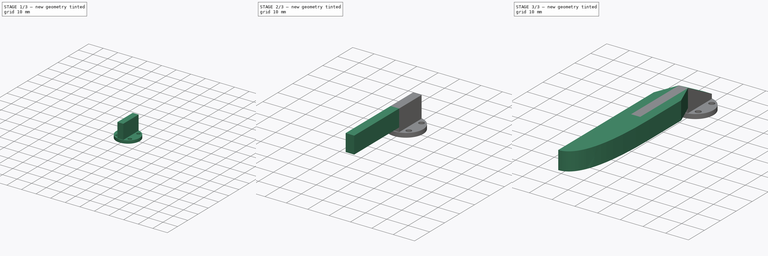
[diagram: build sequence overview — one tinted view per stage of 3, left to right]
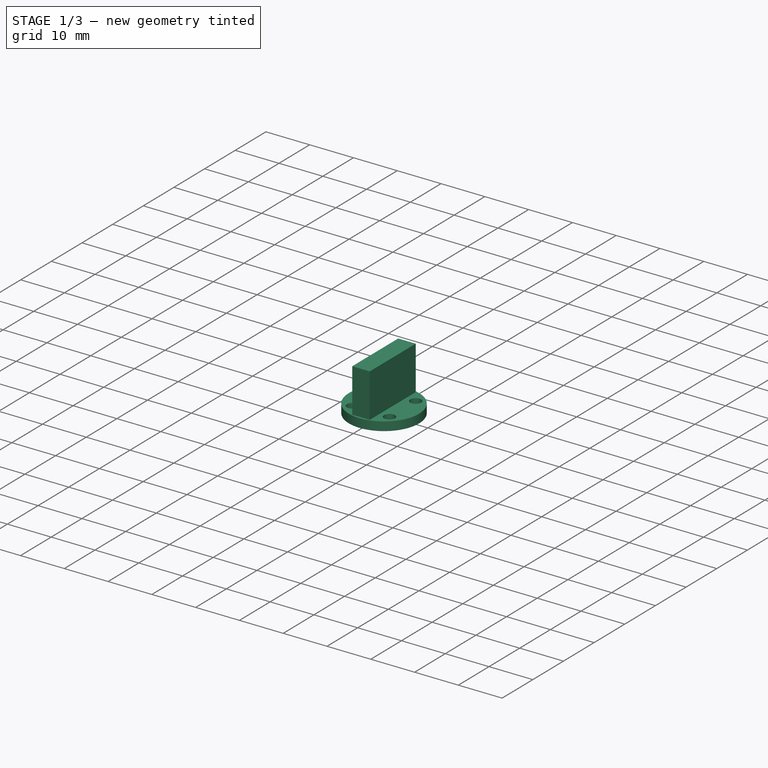
[diagram: stage 1 of 3 — iso view after this stage's code; geometry added in this stage tinted green]
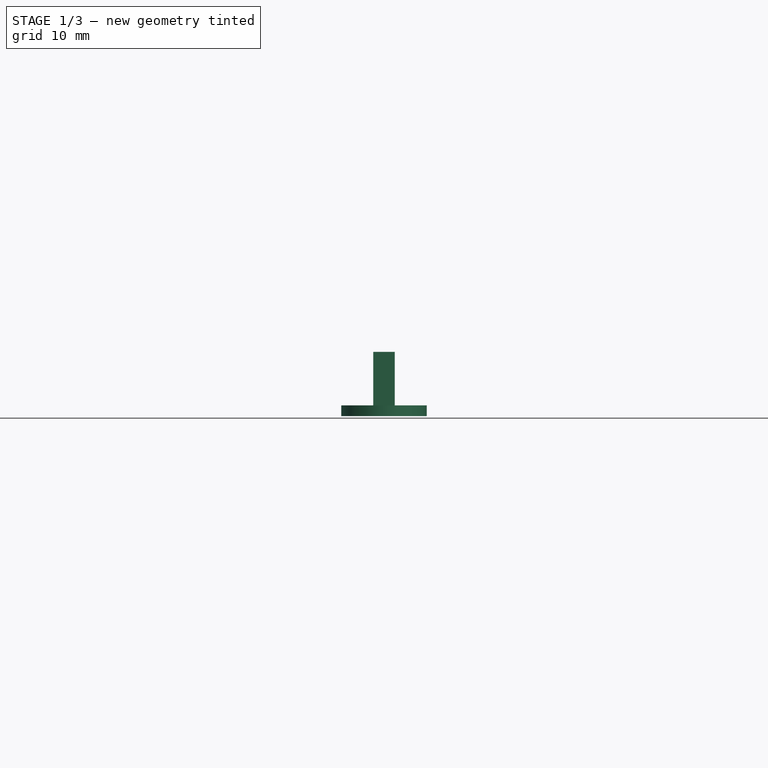
[diagram: stage 1 of 3 — front view after this stage's code; geometry added in this stage tinted green]
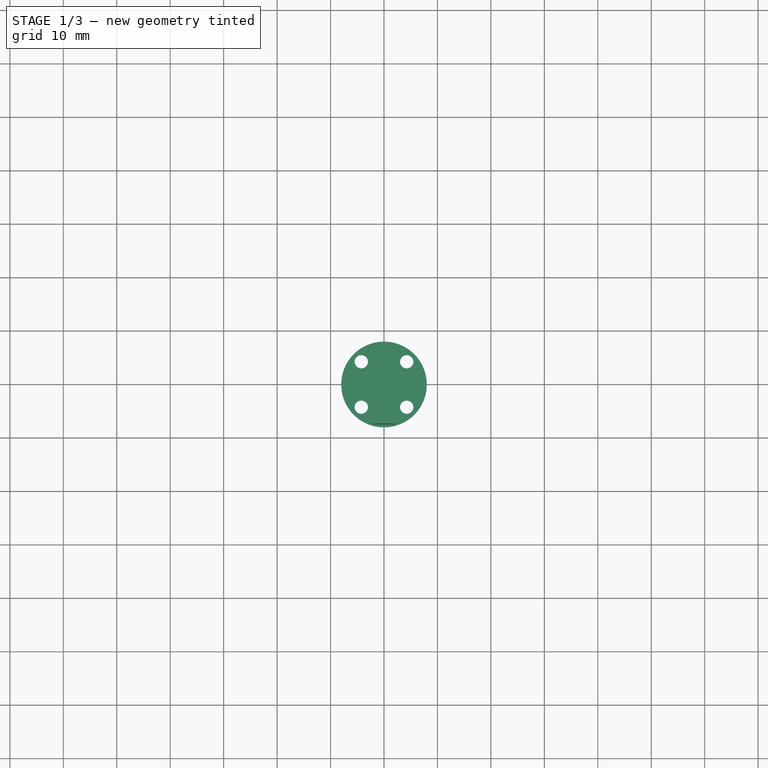
[diagram: stage 1 of 3 — top view after this stage's code; geometry added in this stage tinted green]
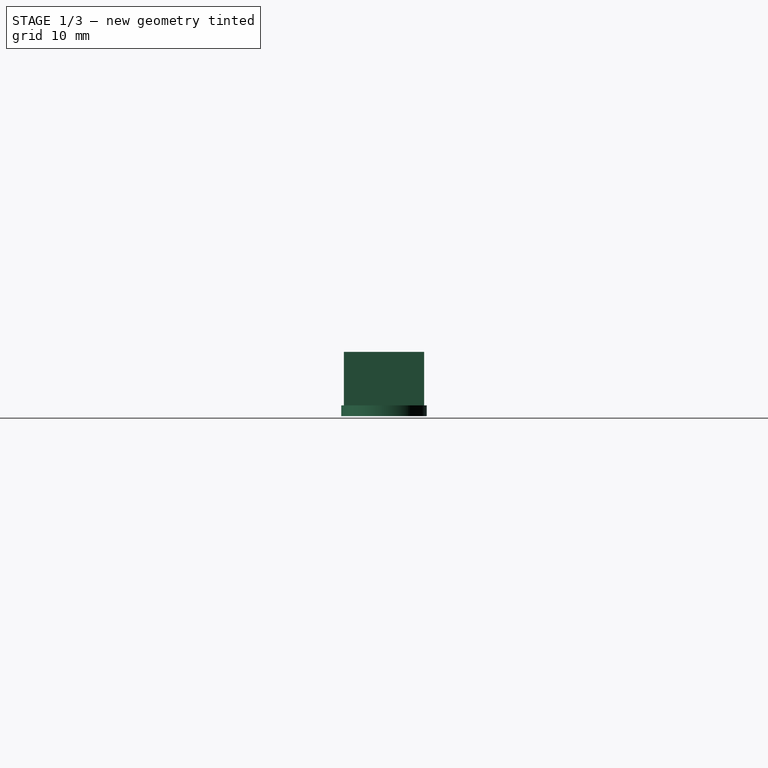
[diagram: stage 1 of 3 — right view after this stage's code; geometry added in this stage tinted green]
FCSTD DOCUMENT  (FreeCAD 0.20R29603 (Git))
Label: Finger
License: All rights reserved
LicenseURL: http://en.wikipedia.org/wiki/All_rights_reserved
objects: Sketcher::SketchObject×5, PartDesign::Pad×4, PartDesign::Pocket×1, PartDesign::Body×1
note: 16 computed .brp shape members not serialized (recipe doc carries the construction recipe); baked Part::Feature solids carry a one-line shape summary decoded from their .brp

FEATURE [Sketcher::SketchObject] Sketch
  FullyConstrained = true
  MapMode = 5
  Support = -> [XY_Plane]
  sketch-geometry (5):
    g0: Circle CenterX=0 CenterY=0 CenterZ=0 NormalX=0 NormalY=0 NormalZ=1 AngleXU=0 Radius=8
    g1: Circle CenterX=-4.25 CenterY=4.25 CenterZ=0 NormalX=0 NormalY=0 NormalZ=1 AngleXU=0 Radius=1.25
    g2: Circle CenterX=4.25 CenterY=4.25 CenterZ=0 NormalX=0 NormalY=0 NormalZ=1 AngleXU=0 Radius=1.25
    g3: Circle CenterX=4.25 CenterY=-4.25 CenterZ=0 NormalX=0 NormalY=0 NormalZ=1 AngleXU=0 Radius=1.25
    g4: Circle CenterX=-4.25 CenterY=-4.25 CenterZ=0 NormalX=0 NormalY=0 NormalZ=1 AngleXU=0 Radius=1.25
  constraints (14):
    c: Coincident(g0,g-1)
    c: Diameter(g0) = 16
    c: Diameter(g1) = 2.5
    c: Diameter(g2) = 2.5
    c: Diameter(g3) = 2.5
    c: Diameter(g4) = 2.5
    c: DistanceX(g1,g4) = 0
    c: DistanceX(g2,g3) = 0
    c: DistanceY(g1,g2) = 0
    c: DistanceY(g3,g4) = 0
    c: DistanceX(g1,g0) = 4.25
    c: DistanceX(g0,g2) = 4.25
    c: DistanceY(g0,g2) = 4.25
    c: DistanceY(g3,g0) = 4.25
FEATURE [PartDesign::Pad] Pad
  Direction = (0,0,1)
  Length = 2
  Length2 = 10
  Profile = -> Sketch
  ReferenceAxis = -> Sketch [N_Axis]
  Type = 0
FEATURE [Sketcher::SketchObject] Sketch001
  FullyConstrained = true
  MapMode = 5
  Placement = pos=(0,0,2) rot=(0,0,1;0rad)
  Support = -> [Pad]
  sketch-geometry (4):
    g0: LineSegment StartX=-2 StartY=7.5 StartZ=0 EndX=2 EndY=7.5 EndZ=0
    g1: LineSegment StartX=2 StartY=7.5 StartZ=0 EndX=2 EndY=-7.5 EndZ=0
    g2: LineSegment StartX=2 StartY=-7.5 StartZ=0 EndX=-2 EndY=-7.5 EndZ=0
    g3: LineSegment StartX=-2 StartY=-7.5 StartZ=0 EndX=-2 EndY=7.5 EndZ=0
  constraints (12):
    c: Coincident(g0,g1)
    c: Coincident(g1,g2)
    c: Coincident(g2,g3)
    c: Coincident(g3,g0)
    c: Horizontal(g0)
    c: Horizontal(g2)
    c: Vertical(g1)
    c: Vertical(g3)
    c: DistanceX(g0,g0) = 4
    c: DistanceX(g-1,g0) = 2
    c: DistanceY(g1,g1) = 15
    c: DistanceY(g-1,g0) = 7.5
FEATURE [PartDesign::Pad] Pad001
  BaseFeature = -> Pad
  Direction = (0,0,1)
  Length = 10
  Length2 = 10
  Profile = -> Sketch001
  ReferenceAxis = -> Sketch001 [N_Axis]
  Type = 0
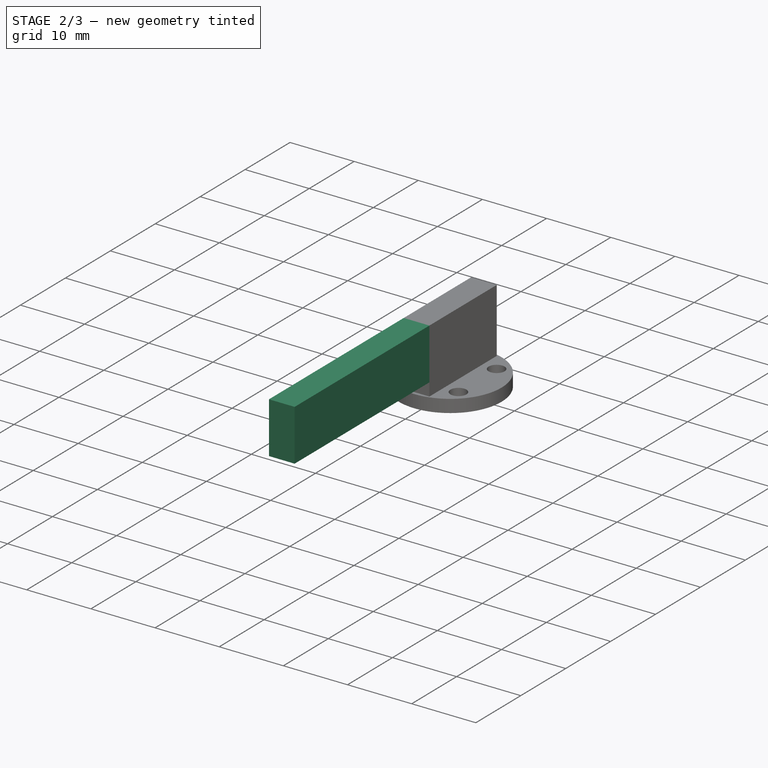
[diagram: stage 2 of 3 — iso view after this stage's code; geometry added in this stage tinted green]
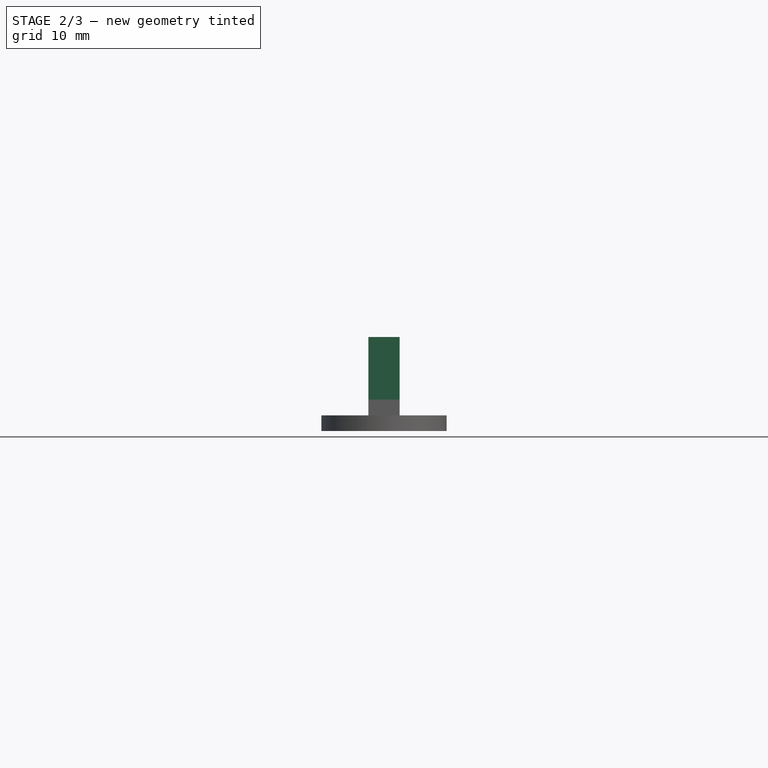
[diagram: stage 2 of 3 — front view after this stage's code; geometry added in this stage tinted green]
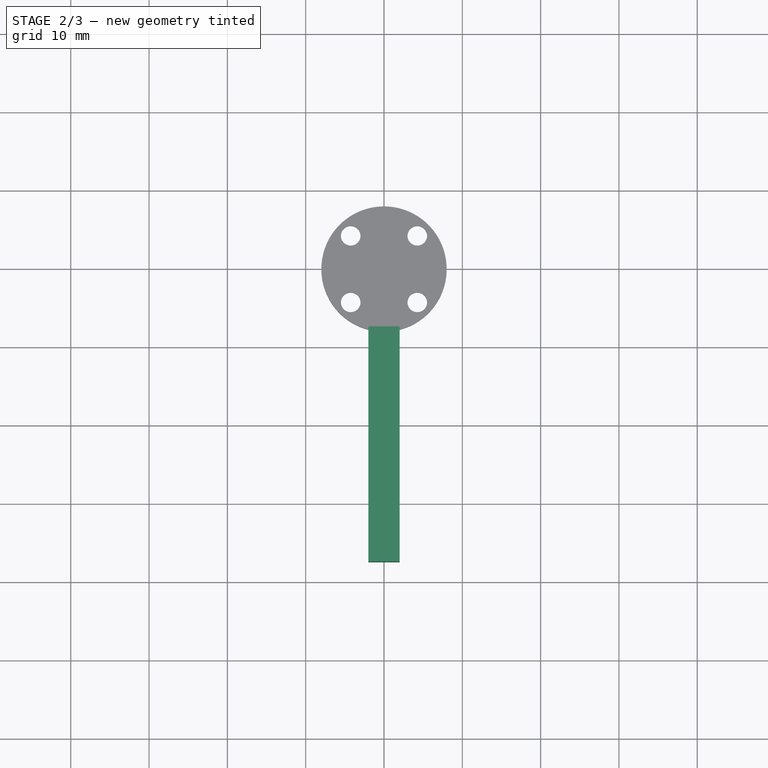
[diagram: stage 2 of 3 — top view after this stage's code; geometry added in this stage tinted green]
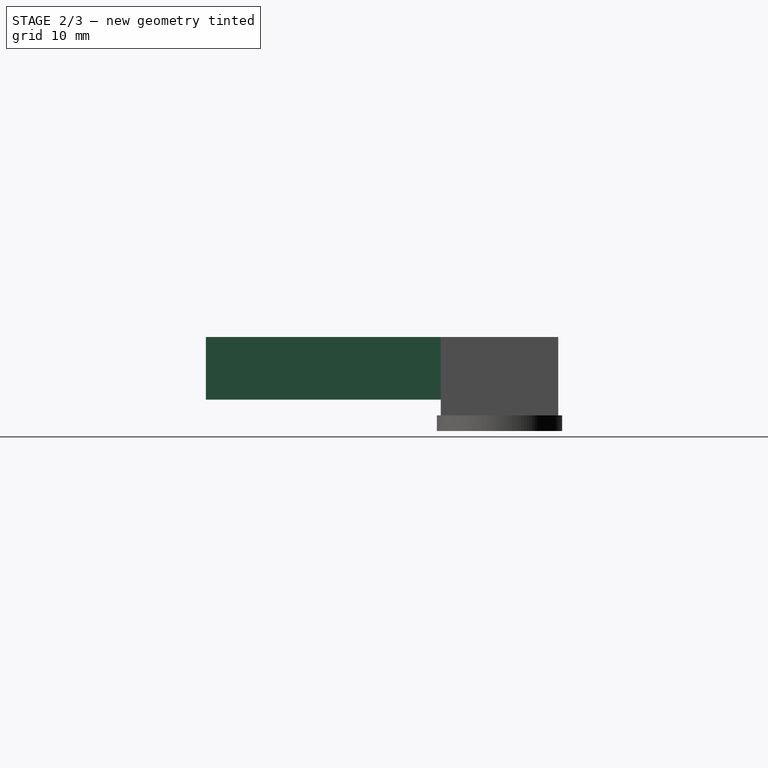
[diagram: stage 2 of 3 — right view after this stage's code; geometry added in this stage tinted green]
FEATURE [Sketcher::SketchObject] Sketch002
  ExternalGeometry = -> [Pad001]
  FullyConstrained = true
  MapMode = 5
  Placement = pos=(0,-7.5,0) rot=(1,0,0;1.5708rad)
  Support = -> [Pad001]
  sketch-geometry (4):
    g0: LineSegment StartX=-2 StartY=12 StartZ=0 EndX=2 EndY=12 EndZ=0
    g1: LineSegment StartX=2 StartY=12 StartZ=0 EndX=2 EndY=4 EndZ=0
    g2: LineSegment StartX=2 StartY=4 StartZ=0 EndX=-2 EndY=4 EndZ=0
    g3: LineSegment StartX=-2 StartY=4 StartZ=0 EndX=-2 EndY=12 EndZ=0
  constraints (12):
    c: Coincident(g0,g1)
    c: Coincident(g1,g2)
    c: Coincident(g2,g3)
    c: Coincident(g3,g0)
    c: Horizontal(g0)
    c: Horizontal(g2)
    c: Vertical(g1)
    c: Vertical(g3)
    c: DistanceX(g-3,g0) = 0
    c: DistanceX(g0,g-3) = 0
    c: DistanceY(g0,g-3) = 0
    c: DistanceY(g1,g1) = 8
FEATURE [PartDesign::Pad] Pad002
  BaseFeature = -> Pad001
  Direction = (0,-1,2e-16)
  Length = 30
  Length2 = 10
  Profile = -> Sketch002
  ReferenceAxis = -> Sketch002 [N_Axis]
  Type = 0
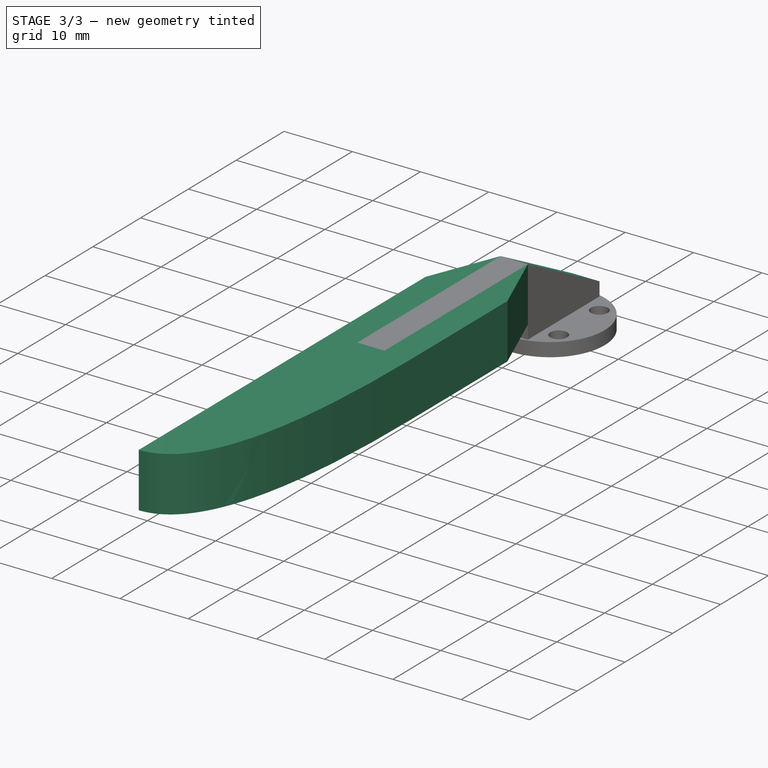
[diagram: stage 3 of 3 — iso view after this stage's code; geometry added in this stage tinted green]
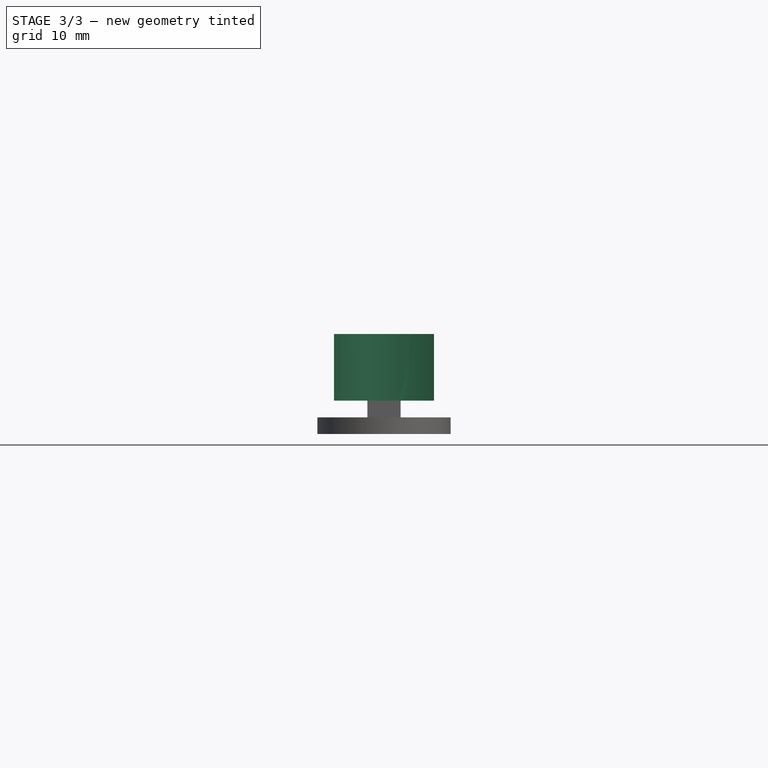
[diagram: stage 3 of 3 — front view after this stage's code; geometry added in this stage tinted green]
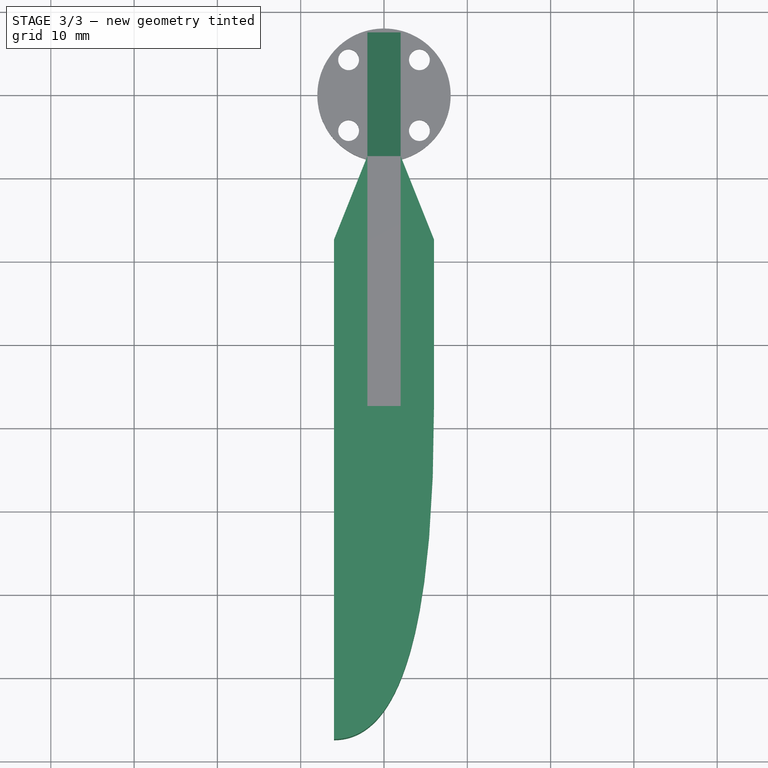
[diagram: stage 3 of 3 — top view after this stage's code; geometry added in this stage tinted green]
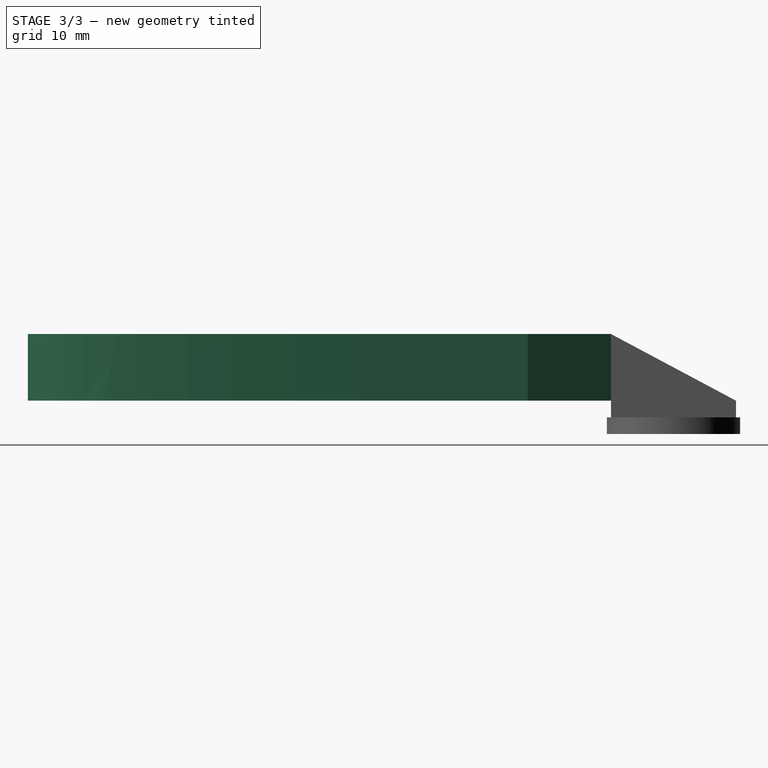
[diagram: stage 3 of 3 — right view after this stage's code; geometry added in this stage tinted green]
FEATURE [Sketcher::SketchObject] Sketch003
  ExternalGeometry = -> [Pad002]
  FullyConstrained = true
  MapMode = 5
  Placement = pos=(2,0,0) rot=(0.57735,0.57735,0.57735;2.0944rad)
  Support = -> [Pad002]
  sketch-geometry (5):
    g0: LineSegment StartX=-7.5 StartY=12 StartZ=0 EndX=7.5 EndY=4 EndZ=0
    g1: LineSegment StartX=7.5 StartY=4 StartZ=0 EndX=17.5 EndY=4 EndZ=0
    g2: LineSegment StartX=-7.5 StartY=12 StartZ=0 EndX=-7.5 EndY=22 EndZ=0
    g3: LineSegment StartX=-7.5 StartY=22 StartZ=0 EndX=17.5 EndY=22 EndZ=0
    g4: LineSegment StartX=17.5 StartY=22 StartZ=0 EndX=17.5 EndY=4 EndZ=0
  constraints (15):
    c: Coincident(g1,g0)
    c: Horizontal(g1)
    c: Coincident(g2,g0)
    c: Vertical(g2)
    c: Coincident(g3,g2)
    c: Horizontal(g3)
    c: Coincident(g4,g3)
    c: Coincident(g4,g1)
    c: Vertical(g4)
    c: DistanceY(g2,g2) = 10
    c: DistanceY(g0,g0) = 8
    c: DistanceY(g0,g-3) = 0
    c: DistanceX(g1,g1) = 10
    c: DistanceX(g0,g-3) = 0
    c: DistanceX(g-3,g0) = 0
FEATURE [PartDesign::Pocket] Pocket
  BaseFeature = -> Pad002
  Direction = (-1,0,0)
  Length = 5
  Length2 = 5
  Profile = -> Sketch003
  ReferenceAxis = -> Sketch003 [N_Axis]
  Type = 0
FEATURE [Sketcher::SketchObject] Sketch004
  ExternalGeometry = -> [Pocket]
  FullyConstrained = true
  MapMode = 5
  Placement = pos=(0,2.7e-15,12) rot=(0,0,1;0rad)
  Support = -> [Pocket]
  sketch-geometry (11):
    g0: LineSegment StartX=-2 StartY=-7.5 StartZ=0 EndX=2 EndY=-7.5 EndZ=0
    g1: LineSegment StartX=-2 StartY=-7.5 StartZ=0 EndX=-6 EndY=-17.5 EndZ=0
    g2: LineSegment StartX=2 StartY=-7.5 StartZ=0 EndX=6 EndY=-17.5 EndZ=0
    g3: LineSegment StartX=-6 StartY=-17.5 StartZ=0 EndX=-6 EndY=-77.5 EndZ=0
    g4: Circle CenterX=6 CenterY=-37.5 CenterZ=0 NormalX=0 NormalY=0 NormalZ=1 AngleXU=0 Radius=1
    g5: Circle CenterX=6 CenterY=-77.5 CenterZ=0 NormalX=0 NormalY=0 NormalZ=1 AngleXU=0 Radius=1
    g6: Circle CenterX=-6 CenterY=-77.5 CenterZ=0 NormalX=0 NormalY=0 NormalZ=1 AngleXU=0 Radius=1
    g7: BSplineCurve PolesCount=3 KnotsCount=2 Degree=2 IsPeriodic=0
    g8: GeomPoint X=6 Y=-37.5 Z=0
    g9: GeomPoint X=-6 Y=-77.5 Z=0
    g10: LineSegment StartX=6 StartY=-17.5 StartZ=0 EndX=6 EndY=-37.5 EndZ=0
  constraints (28):
    c: Horizontal(g0)
    c: Coincident(g1,g0)
    c: Coincident(g2,g0)
    c: Coincident(g3,g1)
    c: Vertical(g3)
    c: Weight(g4) = 1
    c: Equal(g4,g5)
    c: Equal(g4,g6)
    c: InternalAlignment(g4,g7)
    c: InternalAlignment(g5,g7)
    c: InternalAlignment(g6,g7)
    c: InternalAlignment(g8,g7)
    c: InternalAlignment(g9,g7)
    c: Coincident(g10,g2)
    c: Coincident(g10,g7)
    c: Vertical(g10)
    c: Coincident(g7,g3)
    c: Horizontal(g3,g5)
    c: Vertical(g7,g5)
    c: DistanceX(g1,g-3) = 4
    c: DistanceX(g-3,g2) = 4
    c: DistanceY(g3,g-3) = 70
    c: DistanceY(g1,g-3) = 10
    c: DistanceY(g2,g-3) = 10
    c: DistanceX(g0,g-3) = 0
    c: DistanceX(g-3,g0) = 0
    c: DistanceY(g0,g-3) = 0
    c: DistanceY(g7,g2) = 20
FEATURE [PartDesign::Pad] Pad003
  BaseFeature = -> Pocket
  Direction = (0,2e-16,1)
  Length = 8
  Length2 = 10
  Profile = -> Sketch004
  ReferenceAxis = -> Sketch004 [N_Axis]
  Reversed = true
  Type = 0
FEATURE [PartDesign::Body] Body
  Group = -> [Sketch,Pad,Sketch001,Pad001,Sketch002,Pad002,Sketch003,Pocket,Sketch004,Pad003]
  Origin = -> Origin
  Tip = -> Pad003
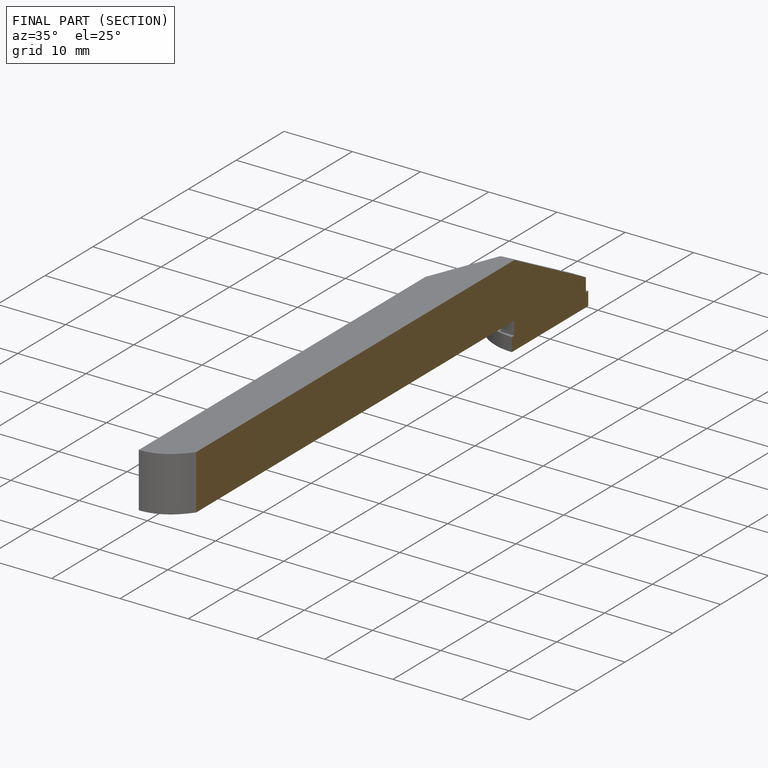
[diagram: finished part — half-section view (interior)]
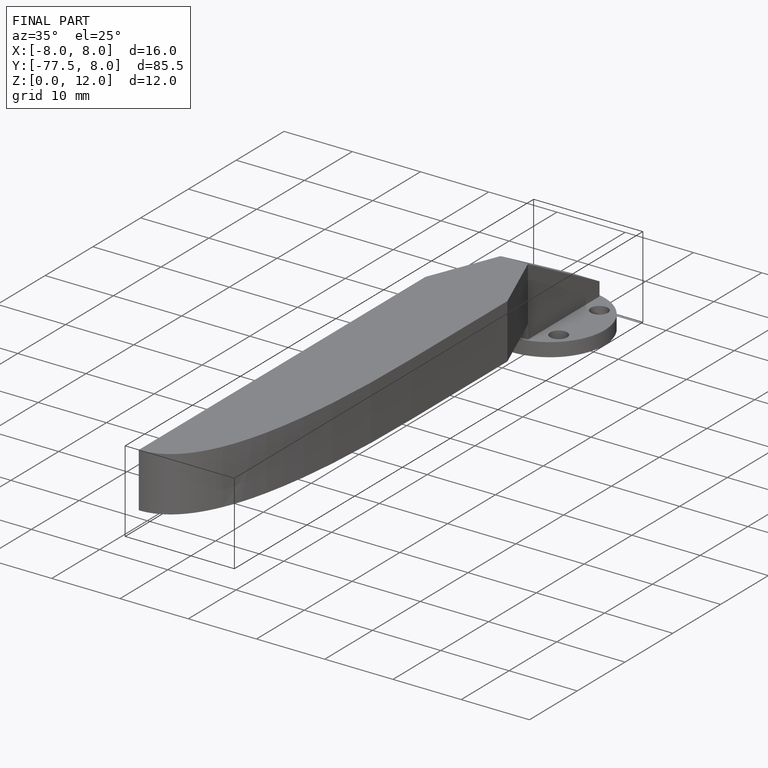
[diagram: finished part — iso view with bounding-box wireframe]
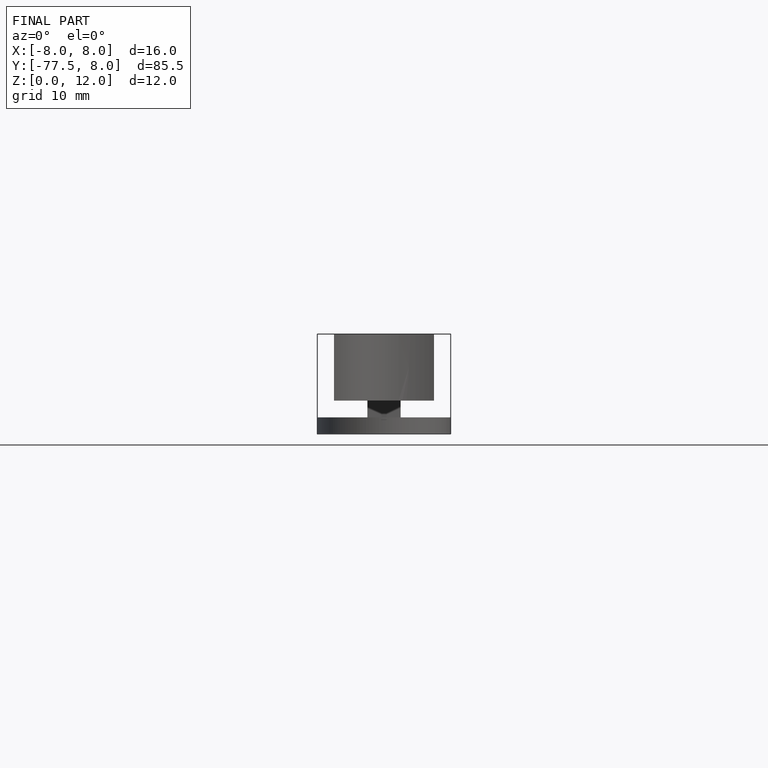
[diagram: finished part — front view with bounding-box wireframe]
